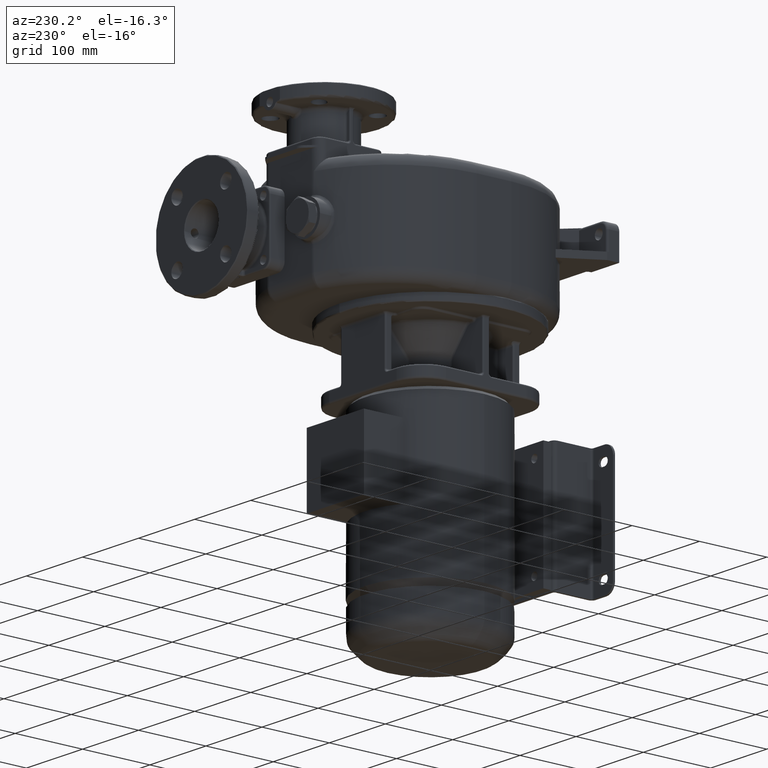
[diagram: clean part render]
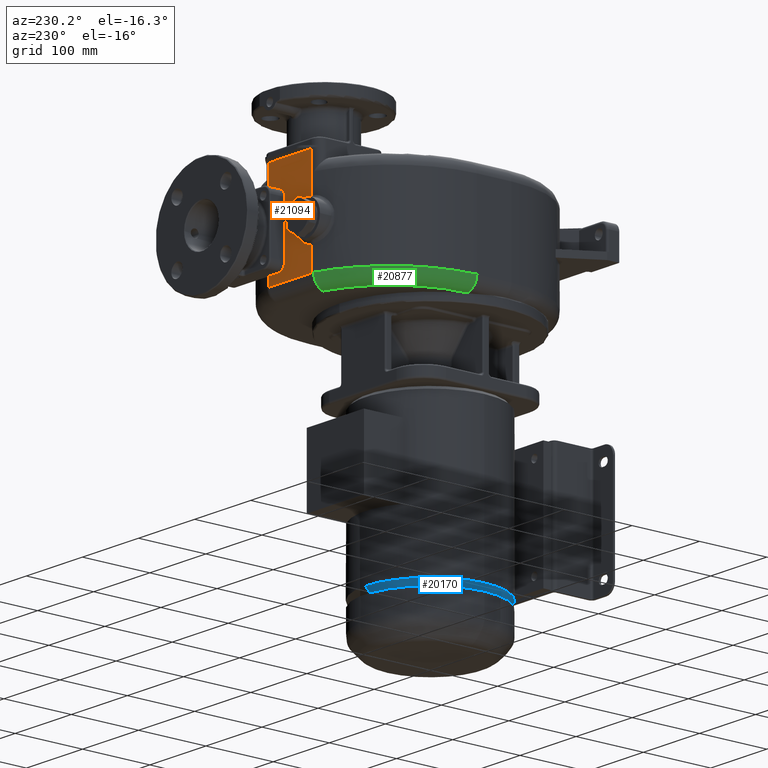
[diagram: same view with three faces highlighted in distinct colors, each labeled with its STEP entity id]
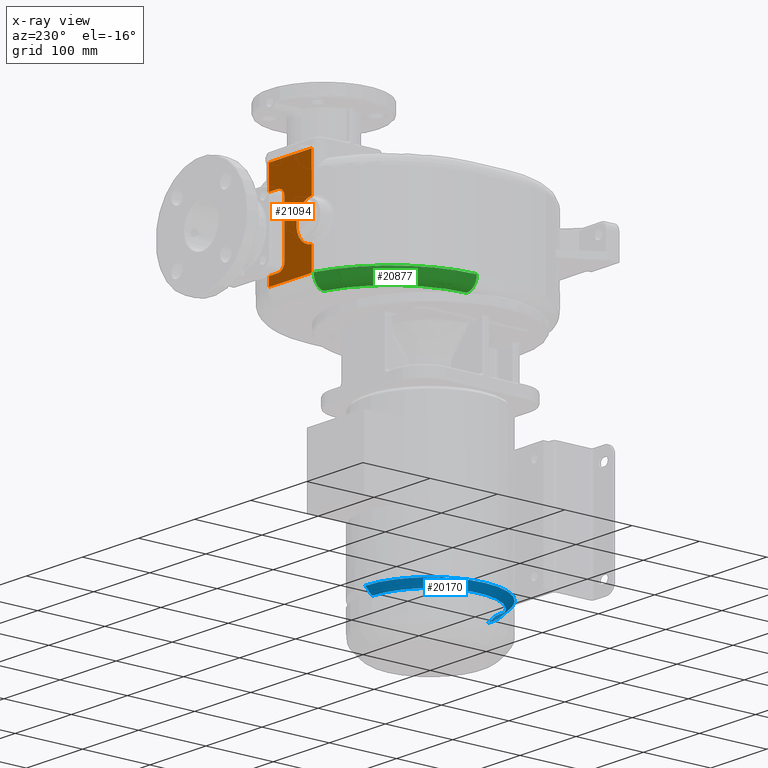
[diagram: x-ray of the same camera — body ghosted, the three highlighted faces saturated]
A machine part, auxiliary view with three faces highlighted in distinct colors.
The next image is the same camera in x-ray (body ghosted, the three faces saturated) — at least one of them is partly hidden behind the body in this view.
Their STEP definitions:

[orange] entity #21094 — the highlighted planar face has unit normal (0, 1, 0).
#1323=CARTESIAN_POINT('',(-2.849999999201E1,1.999999555238E2,1.495690477155E2));
#1353=DIRECTION('',(-1.011506584752E-7,3.707770988283E-7,-9.999999999999E-1));
#1354=VECTOR('',#1353,3.406809069107E1);
#1355=CARTESIAN_POINT('',(-2.849999999201E1,1.999999555238E2,1.495690477155E2));
#1356=LINE('',#1355,#1354);
#1467=DIRECTION('',(-1.E0,0.E0,0.E0));
#1468=VECTOR('',#1467,7.6E1);
#1469=CARTESIAN_POINT('',(4.75E1,2.E2,2.635E2));
#1470=LINE('',#1469,#1468);
#1471=CARTESIAN_POINT('',(-2.849999715519E1,2.E2,1.155E2));
#1472=CARTESIAN_POINT('',(-2.005555644388E1,2.E2,1.155E2));
#1473=CARTESIAN_POINT('',(-3.166672788529E0,2.E2,1.155E2));
#1474=CARTESIAN_POINT('',(2.216667278977E1,2.E2,1.155E2));
#1475=CARTESIAN_POINT('',(3.905555644468E1,2.E2,1.155E2));
#1476=CARTESIAN_POINT('',(4.749999715566E1,2.E2,1.155E2));
#1478=DIRECTION('',(2.644721844961E-7,-2.449364165634E-6,-9.999999999970E-1));
#1479=VECTOR('',#1478,1.299904304905E1);
#1480=CARTESIAN_POINT('',(4.75E1,2.E2,1.285E2));
#1481=LINE('',#1480,#1479);
#1482=DIRECTION('',(-1.E0,0.E0,0.E0));
#1483=VECTOR('',#1482,1.6E1);
#1484=CARTESIAN_POINT('',(4.75E1,2.E2,1.285E2));
#1485=LINE('',#1484,#1483);
#1486=CARTESIAN_POINT('',(3.15E1,2.E2,1.405E2));
#1487=DIRECTION('',(0.E0,-1.E0,0.E0));
#1488=DIRECTION('',(-1.E0,0.E0,0.E0));
#1489=AXIS2_PLACEMENT_3D('',#1486,#1487,#1488);
#1491=DIRECTION('',(0.E0,0.E0,-1.E0));
#1492=VECTOR('',#1491,7.6E1);
#1493=CARTESIAN_POINT('',(1.95E1,2.E2,2.165E2));
#1494=LINE('',#1493,#1492);
#1495=CARTESIAN_POINT('',(3.15E1,2.E2,2.165E2));
#1496=DIRECTION('',(0.E0,-1.E0,0.E0));
#1497=DIRECTION('',(0.E0,0.E0,1.E0));
#1498=AXIS2_PLACEMENT_3D('',#1495,#1496,#1497);
#1500=DIRECTION('',(-1.E0,0.E0,0.E0));
#1501=VECTOR('',#1500,1.6E1);
#1502=CARTESIAN_POINT('',(4.75E1,2.E2,2.285E2));
#1503=LINE('',#1502,#1501);
#1504=DIRECTION('',(0.E0,0.E0,-1.E0));
#1505=VECTOR('',#1504,3.5E1);
#1506=CARTESIAN_POINT('',(4.75E1,2.E2,2.635E2));
#1507=LINE('',#1506,#1505);
#1698=CARTESIAN_POINT('',(-2.849999999150E1,1.999999555279E2,2.074309522844E2));
#1700=DIRECTION('',(1.515239426782E-10,-7.931674935796E-7,-9.999999999997E-1));
#1701=VECTOR('',#1700,5.606904771559E1);
#1702=CARTESIAN_POINT('',(-2.85E1,2.E2,2.635E2));
#1703=LINE('',#1702,#1701);
#11076=CARTESIAN_POINT('',(-3.05E1,2.E2,1.785E2));
#11077=DIRECTION('',(0.E0,-1.E0,0.E0));
#11078=DIRECTION('',(6.896551724168E-2,0.E0,-9.976190442406E-1));
#11079=AXIS2_PLACEMENT_3D('',#11076,#11077,#11078);
#18379=VERTEX_POINT('',#1471);
#18380=VERTEX_POINT('',#1476);
#18509=CARTESIAN_POINT('',(3.15E1,2.E2,2.285E2));
#18510=CARTESIAN_POINT('',(1.95E1,2.E2,2.165E2));
#18511=VERTEX_POINT('',#18509);
#18512=VERTEX_POINT('',#18510);
#18513=CARTESIAN_POINT('',(1.95E1,2.E2,1.405E2));
#18514=VERTEX_POINT('',#18513);
#18515=CARTESIAN_POINT('',(3.15E1,2.E2,1.285E2));
#18516=VERTEX_POINT('',#18515);
#18517=CARTESIAN_POINT('',(4.75E1,2.E2,1.285E2));
#18518=VERTEX_POINT('',#18517);
#18519=CARTESIAN_POINT('',(4.75E1,2.E2,2.285E2));
#18520=VERTEX_POINT('',#18519);
#18550=VERTEX_POINT('',#1698);
#18557=VERTEX_POINT('',#1323);
#19709=CARTESIAN_POINT('',(4.75E1,2.E2,2.635E2));
#19710=CARTESIAN_POINT('',(-2.85E1,2.E2,2.635E2));
#19711=VERTEX_POINT('',#19709);
#19712=VERTEX_POINT('',#19710);
#21065=CARTESIAN_POINT('',(4.75E1,2.E2,2.635E2));
#21066=DIRECTION('',(0.E0,1.E0,0.E0));
#21067=DIRECTION('',(-1.E0,0.E0,0.E0));
#21068=AXIS2_PLACEMENT_3D('',#21065,#21066,#21067);
#21069=PLANE('',#21068);
#21071=ORIENTED_EDGE('',*,*,#21070,.T.);
#21073=ORIENTED_EDGE('',*,*,#21072,.T.);
#21075=ORIENTED_EDGE('',*,*,#21074,.F.);
#21076=ORIENTED_EDGE('',*,*,#20994,.T.);
#21077=ORIENTED_EDGE('',*,*,#21056,.T.);
#21079=ORIENTED_EDGE('',*,*,#21078,.F.);
#21081=ORIENTED_EDGE('',*,*,#21080,.T.);
#21083=ORIENTED_EDGE('',*,*,#21082,.F.);
#21085=ORIENTED_EDGE('',*,*,#21084,.F.);
#21087=ORIENTED_EDGE('',*,*,#21086,.F.);
#21089=ORIENTED_EDGE('',*,*,#21088,.F.);
#21091=ORIENTED_EDGE('',*,*,#21090,.F.);
#21092=EDGE_LOOP('',(#21071,#21073,#21075,#21076,#21077,#21079,#21081,#21083,
#21085,#21087,#21089,#21091));
#21093=FACE_OUTER_BOUND('',#21092,.F.);
#21094=ADVANCED_FACE('',(#21093),#21069,.T.);
#1477=B_SPLINE_CURVE_WITH_KNOTS('',3,(#1471,#1472,#1473,#1474,#1475,#1476),
.UNSPECIFIED.,.F.,.F.,(4,1,1,4),(0.E0,3.333333333333E-1,6.666666666667E-1,1.E0),
.UNSPECIFIED.);
#1490=CIRCLE('',#1489,1.2E1);
#1499=CIRCLE('',#1498,1.2E1);
#11080=CIRCLE('',#11079,2.9E1);
#20994=EDGE_CURVE('',#18557,#18379,#1356,.T.);
#21056=EDGE_CURVE('',#18379,#18380,#1477,.T.);
#21070=EDGE_CURVE('',#19711,#19712,#1470,.T.);
#21072=EDGE_CURVE('',#19712,#18550,#1703,.T.);
#21074=EDGE_CURVE('',#18557,#18550,#11080,.T.);
#21078=EDGE_CURVE('',#18518,#18380,#1481,.T.);
#21080=EDGE_CURVE('',#18518,#18516,#1485,.T.);
#21082=EDGE_CURVE('',#18514,#18516,#1490,.T.);
#21084=EDGE_CURVE('',#18512,#18514,#1494,.T.);
#21086=EDGE_CURVE('',#18511,#18512,#1499,.T.);
#21088=EDGE_CURVE('',#18520,#18511,#1503,.T.);
#21090=EDGE_CURVE('',#19711,#18520,#1507,.T.);

[blue] entity #20170 — the highlighted conical surface has half-angle 45 deg.
#87=CARTESIAN_POINT('',(0.E0,0.E0,-2.41E2));
#88=DIRECTION('',(0.E0,0.E0,1.E0));
#89=DIRECTION('',(0.E0,1.E0,0.E0));
#90=AXIS2_PLACEMENT_3D('',#87,#88,#89);
#230=CARTESIAN_POINT('',(0.E0,0.E0,-2.31E2));
#231=DIRECTION('',(0.E0,0.E0,1.E0));
#232=DIRECTION('',(0.E0,1.E0,0.E0));
#233=AXIS2_PLACEMENT_3D('',#230,#231,#232);
#16925=CARTESIAN_POINT('',(0.E0,0.E0,-2.31E2));
#16926=DIRECTION('',(0.E0,0.E0,1.E0));
#16927=DIRECTION('',(-1.E0,0.E0,0.E0));
#16928=AXIS2_PLACEMENT_3D('',#16925,#16926,#16927);
#16972=DIRECTION('',(0.E0,7.071067811865E-1,7.071067811865E-1));
#16973=VECTOR('',#16972,1.414213562373E1);
#16974=CARTESIAN_POINT('',(0.E0,8.65E1,-2.41E2));
#16975=LINE('',#16974,#16973);
#16981=DIRECTION('',(0.E0,-7.071067811865E-1,7.071067811865E-1));
#16982=VECTOR('',#16981,1.414213562373E1);
#16983=CARTESIAN_POINT('',(0.E0,-8.65E1,-2.41E2));
#16984=LINE('',#16983,#16982);
#17977=CARTESIAN_POINT('',(0.E0,8.65E1,-2.41E2));
#17978=CARTESIAN_POINT('',(-1.059318481262E-14,-8.65E1,-2.41E2));
#17979=VERTEX_POINT('',#17977);
#17980=VERTEX_POINT('',#17978);
#17985=CARTESIAN_POINT('',(-1.551837356938E-14,9.65E1,-2.31E2));
#17986=CARTESIAN_POINT('',(-9.65E1,1.181785161177E-14,-2.31E2));
#17987=VERTEX_POINT('',#17985);
#17988=VERTEX_POINT('',#17986);
#17991=CARTESIAN_POINT('',(-1.772675241766E-14,-9.65E1,-2.31E2));
#17992=VERTEX_POINT('',#17991);
#20154=CARTESIAN_POINT('',(0.E0,0.E0,-2.36E2));
#20155=DIRECTION('',(0.E0,0.E0,1.E0));
#20156=DIRECTION('',(0.E0,-1.E0,0.E0));
#20157=AXIS2_PLACEMENT_3D('',#20154,#20155,#20156);
#20158=CONICAL_SURFACE('',#20157,9.15E1,4.5E1);
#20160=ORIENTED_EDGE('',*,*,#20159,.T.);
#20162=ORIENTED_EDGE('',*,*,#20161,.T.);
#20164=ORIENTED_EDGE('',*,*,#20163,.F.);
#20165=ORIENTED_EDGE('',*,*,#20147,.F.);
#20167=ORIENTED_EDGE('',*,*,#20166,.T.);
#20168=EDGE_LOOP('',(#20160,#20162,#20164,#20165,#20167));
#20169=FACE_OUTER_BOUND('',#20168,.F.);
#20170=ADVANCED_FACE('',(#20169),#20158,.T.);
#91=CIRCLE('',#90,8.65E1);
#234=CIRCLE('',#233,9.65E1);
#16929=CIRCLE('',#16928,9.65E1);
#20147=EDGE_CURVE('',#17979,#17980,#91,.T.);
#20159=EDGE_CURVE('',#17987,#17988,#234,.T.);
#20161=EDGE_CURVE('',#17988,#17992,#16929,.T.);
#20163=EDGE_CURVE('',#17980,#17992,#16984,.T.);
#20166=EDGE_CURVE('',#17979,#17987,#16975,.T.);

[green] entity #20877 — the highlighted toroidal blend (fillet) surface has major radius 136 mm and minor (blend) radius 18 mm.
#1039=CARTESIAN_POINT('',(9.5E0,5.117894898810E1,9.75E1));
#1040=DIRECTION('',(0.E0,0.E0,-1.E0));
#1041=DIRECTION('',(-1.E0,0.E0,0.E0));
#1042=AXIS2_PLACEMENT_3D('',#1039,#1040,#1041);
#1108=CARTESIAN_POINT('',(-1.265E2,5.117894898810E1,1.155E2));
#1109=DIRECTION('',(0.E0,1.E0,0.E0));
#1110=DIRECTION('',(0.E0,0.E0,-1.E0));
#1111=AXIS2_PLACEMENT_3D('',#1108,#1109,#1110);
#1240=CARTESIAN_POINT('',(9.5E0,5.117894898810E1,1.155E2));
#1241=DIRECTION('',(0.E0,0.E0,-1.E0));
#1242=DIRECTION('',(-1.E0,0.E0,0.E0));
#1243=AXIS2_PLACEMENT_3D('',#1240,#1241,#1242);
#1412=CARTESIAN_POINT('',(-3.171124632593E1,1.995623477914E2,1.155039847584E2));
#1413=CARTESIAN_POINT('',(-3.171123595434E1,1.995623506656E2,1.153183644066E2));
#1414=CARTESIAN_POINT('',(-3.170996774245E1,1.995568804579E2,1.149476270885E2));
#1415=CARTESIAN_POINT('',(-3.170432875573E1,1.995319621433E2,1.143947158273E2));
#1416=CARTESIAN_POINT('',(-3.169497397446E1,1.994904198057E2,1.138420441497E2));
#1417=CARTESIAN_POINT('',(-3.168190627501E1,1.994322711800E2,1.132911031053E2));
#1418=CARTESIAN_POINT('',(-3.166512004976E1,1.993575823063E2,1.127421895793E2));
#1419=CARTESIAN_POINT('',(-3.164459306268E1,1.992664361938E2,1.121959140365E2));
#1420=CARTESIAN_POINT('',(-3.162031137377E1,1.991589347399E2,1.116527966243E2));
#1421=CARTESIAN_POINT('',(-3.159236019639E1,1.990351610979E2,1.111133385729E2));
#1422=CARTESIAN_POINT('',(-3.156076471072E1,1.988952233872E2,1.105780128144E2));
#1423=CARTESIAN_POINT('',(-3.152555601401E1,1.987392385440E2,1.100472883841E2));
#1424=CARTESIAN_POINT('',(-3.148675534393E1,1.985673380640E2,1.095216325049E2));
#1425=CARTESIAN_POINT('',(-3.144437631055E1,1.983796674666E2,1.090015126523E2));
#1426=CARTESIAN_POINT('',(-3.139843962371E1,1.981764104573E2,1.084874577679E2));
#1427=CARTESIAN_POINT('',(-3.134893406248E1,1.979577772285E2,1.079799839132E2));
#1428=CARTESIAN_POINT('',(-3.129599212568E1,1.977239592535E2,1.074796052133E2));
#1429=CARTESIAN_POINT('',(-3.123967592502E1,1.974751899841E2,1.069868331250E2));
#1430=CARTESIAN_POINT('',(-3.118003385237E1,1.972117259208E2,1.065021690235E2));
#1431=CARTESIAN_POINT('',(-3.111711101212E1,1.969338427648E2,1.060261034843E2));
#1432=CARTESIAN_POINT('',(-3.105094647609E1,1.966418422474E2,1.055591238407E2));
#1433=CARTESIAN_POINT('',(-3.098157125850E1,1.963360027570E2,1.051016441249E2));
#1434=CARTESIAN_POINT('',(-3.090898672140E1,1.960166067871E2,1.046540530239E2));
#1435=CARTESIAN_POINT('',(-3.083327085421E1,1.956839252442E2,1.042167350912E2));
#1436=CARTESIAN_POINT('',(-3.075461784987E1,1.953382096972E2,1.037900746595E2));
#1437=CARTESIAN_POINT('',(-3.067305791105E1,1.949798020789E2,1.033744867162E2));
#1438=CARTESIAN_POINT('',(-3.058865797626E1,1.946090468825E2,1.029703736443E2));
#1439=CARTESIAN_POINT('',(-3.050146999289E1,1.942263084190E2,1.025781287839E2));
#1440=CARTESIAN_POINT('',(-3.041154033232E1,1.938319590044E2,1.021981272787E2));
#1441=CARTESIAN_POINT('',(-3.031892053759E1,1.934263726126E2,1.018307254679E2));
#1442=CARTESIAN_POINT('',(-3.022361856567E1,1.930099469899E2,1.014762692692E2));
#1443=CARTESIAN_POINT('',(-3.012588111506E1,1.925830181189E2,1.011350898690E2));
#1444=CARTESIAN_POINT('',(-3.002578951665E1,1.921460244123E2,1.008075393791E2));
#1445=CARTESIAN_POINT('',(-2.992342571391E1,1.916994297753E2,1.004939603577E2));
#1446=CARTESIAN_POINT('',(-2.981887074973E1,1.912437139676E2,1.001946779039E2));
#1447=CARTESIAN_POINT('',(-2.971219770483E1,1.907793538560E2,9.990998636518E1));
#1448=CARTESIAN_POINT('',(-2.960346755977E1,1.903067374355E2,9.964010939885E1));
#1449=CARTESIAN_POINT('',(-2.949270263821E1,1.898262787115E2,9.938527091026E1));
#1450=CARTESIAN_POINT('',(-2.938007274577E1,1.893383382615E2,9.914568082417E1));
#1451=CARTESIAN_POINT('',(-2.926586395507E1,1.888433592446E2,9.892159013673E1));
#1452=CARTESIAN_POINT('',(-2.915011059569E1,1.883419221242E2,9.871325112367E1));
#1453=CARTESIAN_POINT('',(-2.903290811832E1,1.878345894114E2,9.852088639059E1));
#1454=CARTESIAN_POINT('',(-2.891433496699E1,1.873219518880E2,9.834469705486E1));
#1455=CARTESIAN_POINT('',(-2.879444042725E1,1.868044850731E2,9.818482073342E1));
#1456=CARTESIAN_POINT('',(-2.867328067988E1,1.862826462215E2,9.804138018329E1));
#1457=CARTESIAN_POINT('',(-2.855086383271E1,1.857569194309E2,9.791449060745E1));
#1458=CARTESIAN_POINT('',(-2.842749640480E1,1.852276597253E2,9.780424797472E1));
#1459=CARTESIAN_POINT('',(-2.830331013275E1,1.846952473236E2,9.771073920098E1));
#1460=CARTESIAN_POINT('',(-2.817841327101E1,1.841600802540E2,9.763405291875E1));
#1461=CARTESIAN_POINT('',(-2.805300928476E1,1.836225372001E2,9.757426599973E1));
#1462=CARTESIAN_POINT('',(-2.792693471723E1,1.830830863904E2,9.753148351590E1));
#1463=CARTESIAN_POINT('',(-2.780138210577E1,1.825418969818E2,9.750569023168E1));
#1464=CARTESIAN_POINT('',(-2.771543690003E1,1.821808282990E2,9.750009772178E1));
#1465=CARTESIAN_POINT('',(-2.767327820096E1,1.820000000036E2,9.75E1));
#18381=CARTESIAN_POINT('',(-2.767319752397E1,1.820000000009E2,9.75E1));
#18383=VERTEX_POINT('',#18381);
#18397=CARTESIAN_POINT('',(-1.445E2,5.117894898810E1,1.155E2));
#18398=VERTEX_POINT('',#18397);
#18399=CARTESIAN_POINT('',(-3.171123784085E1,1.995623506058E2,1.155E2));
#18400=VERTEX_POINT('',#18399);
#18401=CARTESIAN_POINT('',(-1.265E2,5.117894898810E1,9.75E1));
#18402=VERTEX_POINT('',#18401);
#20864=CARTESIAN_POINT('',(9.5E0,5.117894898810E1,1.155E2));
#20865=DIRECTION('',(0.E0,0.E0,-1.E0));
#20866=DIRECTION('',(7.952172426959E-1,-6.063246134862E-1,0.E0));
#20867=AXIS2_PLACEMENT_3D('',#20864,#20865,#20866);
#20868=TOROIDAL_SURFACE('',#20867,1.36E2,1.8E1);
#20870=ORIENTED_EDGE('',*,*,#20869,.F.);
#20871=ORIENTED_EDGE('',*,*,#20853,.F.);
#20872=ORIENTED_EDGE('',*,*,#20804,.T.);
#20874=ORIENTED_EDGE('',*,*,#20873,.F.);
#20875=EDGE_LOOP('',(#20870,#20871,#20872,#20874));
#20876=FACE_OUTER_BOUND('',#20875,.F.);
#20877=ADVANCED_FACE('',(#20876),#20868,.T.);
#1043=CIRCLE('',#1042,1.36E2);
#1112=CIRCLE('',#1111,1.8E1);
#1244=CIRCLE('',#1243,1.54E2);
#1466=B_SPLINE_CURVE_WITH_KNOTS('',3,(#1412,#1413,#1414,#1415,#1416,#1417,#1418,
#1419,#1420,#1421,#1422,#1423,#1424,#1425,#1426,#1427,#1428,#1429,#1430,#1431,
#1432,#1433,#1434,#1435,#1436,#1437,#1438,#1439,#1440,#1441,#1442,#1443,#1444,
#1445,#1446,#1447,#1448,#1449,#1450,#1451,#1452,#1453,#1454,#1455,#1456,#1457,
#1458,#1459,#1460,#1461,#1462,#1463,#1464,#1465),.UNSPECIFIED.,.F.,.F.,(4,1,1,1,
1,1,1,1,1,1,1,1,1,1,1,1,1,1,1,1,1,1,1,1,1,1,1,1,1,1,1,1,1,1,1,1,1,1,1,1,1,1,1,1,
1,1,1,1,1,1,1,4),(0.E0,1.960784313725E-2,3.921568627451E-2,5.882352941176E-2,
7.843137254902E-2,9.803921568627E-2,1.176470588235E-1,1.372549019608E-1,
1.568627450980E-1,1.764705882353E-1,1.960784313725E-1,2.156862745098E-1,
2.352941176471E-1,2.549019607843E-1,2.745098039216E-1,2.941176470588E-1,
3.137254901961E-1,3.333333333333E-1,3.529411764706E-1,3.725490196078E-1,
3.921568627451E-1,4.117647058824E-1,4.313725490196E-1,4.509803921569E-1,
4.705882352941E-1,4.901960784314E-1,5.098039215686E-1,5.294117647059E-1,
5.490196078431E-1,5.686274509804E-1,5.882352941176E-1,6.078431372549E-1,
6.274509803922E-1,6.470588235294E-1,6.666666666667E-1,6.862745098039E-1,
7.058823529412E-1,7.254901960784E-1,7.450980392157E-1,7.647058823529E-1,
7.843137254902E-1,8.039215686275E-1,8.235294117647E-1,8.431372549020E-1,
8.627450980392E-1,8.823529411765E-1,9.019607843137E-1,9.215686274510E-1,
9.411764705882E-1,9.607843137255E-1,9.803921568627E-1,1.E0),.UNSPECIFIED.);
#20804=EDGE_CURVE('',#18402,#18383,#1043,.T.);
#20853=EDGE_CURVE('',#18402,#18398,#1112,.T.);
#20869=EDGE_CURVE('',#18398,#18400,#1244,.T.);
#20873=EDGE_CURVE('',#18400,#18383,#1466,.T.);